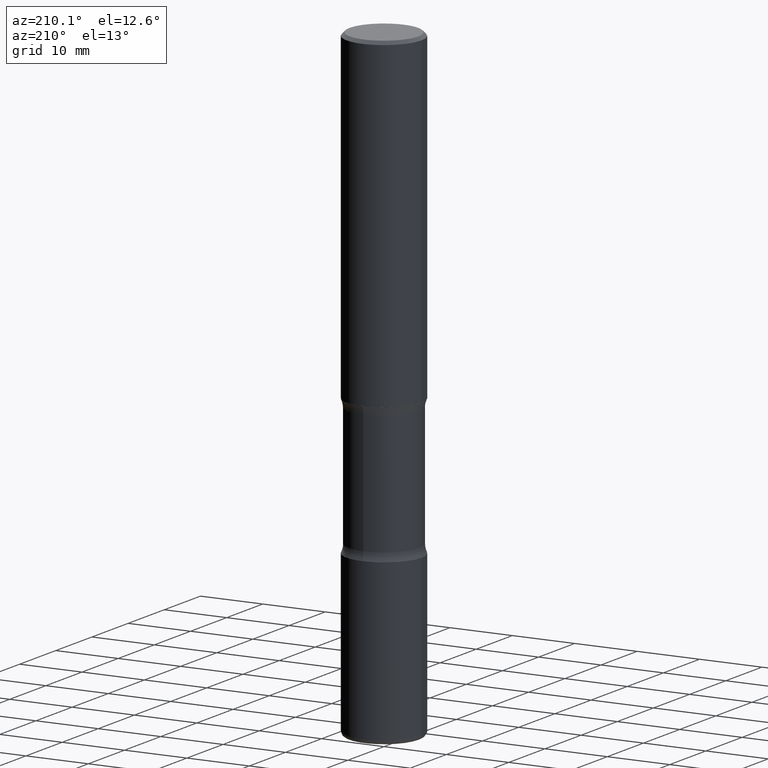
[diagram: clean part render]
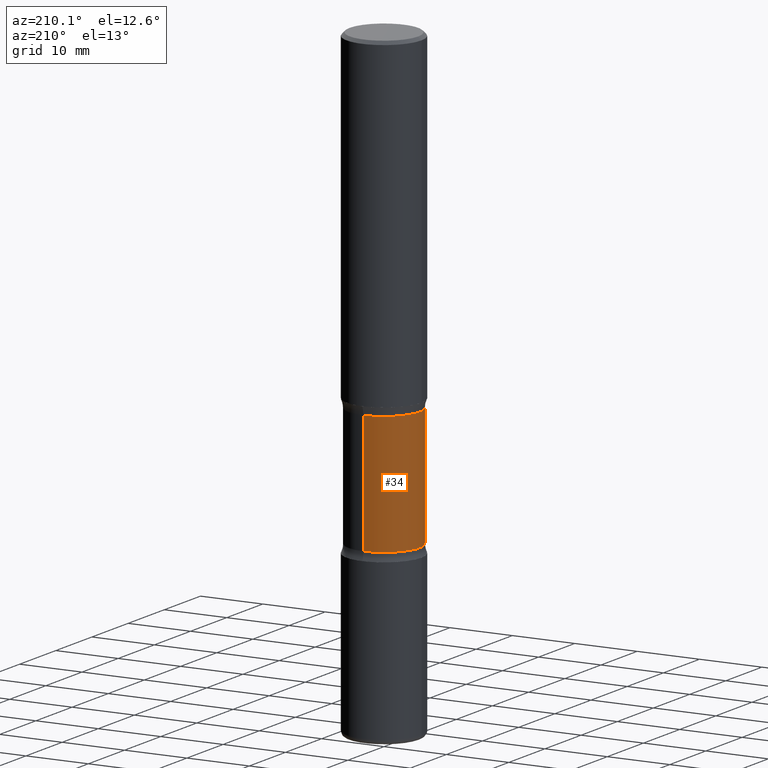
[diagram: same view with one face highlighted and labeled with its STEP entity id]
A machine part, auxiliary view. The second image highlights one B-rep face of the part: STEP entity #34.
In plain terms, the highlighted cylindrical surface (partial cylindrical patch) has radius 5.6998 mm, axis along (0, -0, -1).
Its self-contained STEP definition (entity closure, byte-faithful):
#3 = ORIENTED_EDGE ( 'NONE', *, *, #37, .F. ) ;
#4 = ORIENTED_EDGE ( 'NONE', *, *, #148, .T. ) ;
#26 = DIRECTION ( 'NONE',  ( 2.525985086076564115E-29, -3.376177443336566513E-15, -1.000000000000000000 ) ) ;
#34 = ADVANCED_FACE ( 'NONE', ( #352 ), #81, .T. ) ;
#37 = EDGE_CURVE ( 'NONE', #227, #372, #523, .T. ) ;
#55 = DIRECTION ( 'NONE',  ( 6.982962677686265922E-15, 1.000000000000000000, -2.434802133390609421E-15 ) ) ;
#57 = CARTESIAN_POINT ( 'NONE',  ( 1.566976824872894642E-15, 0.2243999999999863049, -3.937000000000000721 ) ) ;
#59 = AXIS2_PLACEMENT_3D ( 'NONE', #68, #26, #55 ) ;
#66 = EDGE_LOOP ( 'NONE', ( #3, #213, #4, #406 ) ) ;
#68 = CARTESIAN_POINT ( 'NONE',  ( 6.990709676060807691E-29, -9.993088279580958225E-15, -2.860383398826405354 ) ) ;
#75 = CARTESIAN_POINT ( 'NONE',  ( 1.566976824872867821E-15, 0.2243999999999899686, -2.860383398826405799 ) ) ;
#78 = VERTEX_POINT ( 'NONE', #217 ) ;
#81 = CYLINDRICAL_SURFACE ( 'NONE', #418, 0.2243999999999999329 ) ;
#86 = DIRECTION ( 'NONE',  ( 2.525985086076564115E-29, -3.376177443336566513E-15, -1.000000000000000000 ) ) ;
#107 = CARTESIAN_POINT ( 'NONE',  ( 5.070539682259229331E-29, -7.426630284172150130E-15, -2.100216601173595432 ) ) ;
#135 = EDGE_CURVE ( 'NONE', #372, #273, #487, .T. ) ;
#148 = EDGE_CURVE ( 'NONE', #78, #273, #197, .T. ) ;
#177 = DIRECTION ( 'NONE',  ( 6.982962677686265922E-15, 1.000000000000000000, -2.434802133390609815E-15 ) ) ;
#197 = LINE ( 'NONE', #57, #331 ) ;
#199 = DIRECTION ( 'NONE',  ( 6.982962677686265922E-15, 1.000000000000000000, -3.652203200085913934E-15 ) ) ;
#213 = ORIENTED_EDGE ( 'NONE', *, *, #382, .T. ) ;
#217 = CARTESIAN_POINT ( 'NONE',  ( 1.566976824872848494E-15, 0.2243999999999925499, -2.100216601173596320 ) ) ;
#227 = VERTEX_POINT ( 'NONE', #242 ) ;
#232 = CARTESIAN_POINT ( 'NONE',  ( -1.579972688886713168E-15, -0.2244000000000099804, -2.860383398826404466 ) ) ;
#242 = CARTESIAN_POINT ( 'NONE',  ( -1.579972688886734072E-15, -0.2244000000000073713, -2.100216601173594544 ) ) ;
#259 = CARTESIAN_POINT ( 'NONE',  ( -1.539495750699834052E-15, -0.2244000000000135608, -3.936999999999999389 ) ) ;
#273 = VERTEX_POINT ( 'NONE', #75 ) ;
#326 = DIRECTION ( 'NONE',  ( 2.525985086076564115E-29, -3.376177443336566513E-15, -1.000000000000000000 ) ) ;
#331 = VECTOR ( 'NONE', #326, 39.37007874015748143 ) ;
#338 = AXIS2_PLACEMENT_3D ( 'NONE', #107, #451, #199 ) ;
#352 = FACE_OUTER_BOUND ( 'NONE', #66, .T. ) ;
#372 = VERTEX_POINT ( 'NONE', #232 ) ;
#382 = EDGE_CURVE ( 'NONE', #227, #78, #399, .T. ) ;
#390 = CARTESIAN_POINT ( 'NONE',  ( 9.710227154047748282E-29, -1.362793696358492956E-14, -3.937000000000000277 ) ) ;
#399 = CIRCLE ( 'NONE', #338, 0.2243999999999999606 ) ;
#406 = ORIENTED_EDGE ( 'NONE', *, *, #135, .F. ) ;
#418 = AXIS2_PLACEMENT_3D ( 'NONE', #390, #86, #177 ) ;
#432 = DIRECTION ( 'NONE',  ( 2.525985086076564115E-29, -3.376177443336566513E-15, -1.000000000000000000 ) ) ;
#451 = DIRECTION ( 'NONE',  ( 2.525985086076564115E-29, -3.376177443336566513E-15, -1.000000000000000000 ) ) ;
#487 = CIRCLE ( 'NONE', #59, 0.2243999999999999606 ) ;
#523 = LINE ( 'NONE', #259, #558 ) ;
#558 = VECTOR ( 'NONE', #432, 39.37007874015748143 ) ;